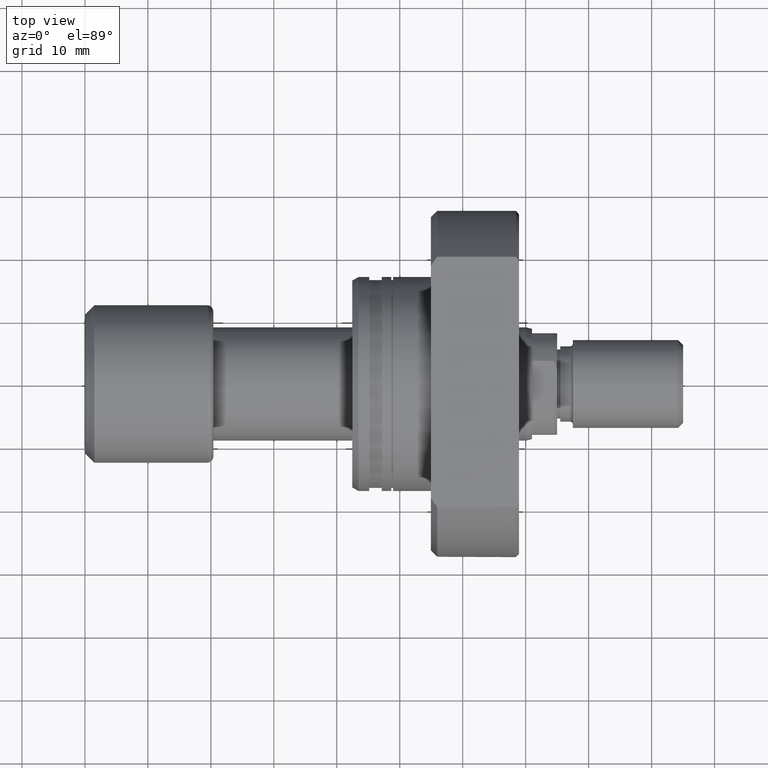
[diagram: clean part render]
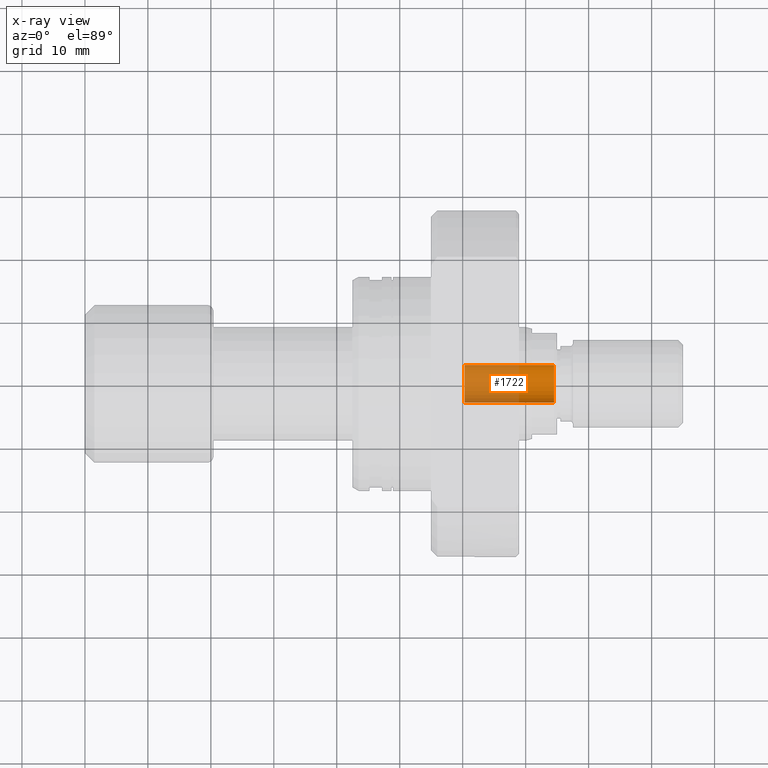
[diagram: x-ray — body ghosted, one internal face saturated and labeled with its STEP entity id]
A machine part, top view, then the same camera in x-ray: the body is ghosted and one INTERNAL B-rep face — a face not visible from any outside direction — is saturated and labeled: STEP entity #1722.
In plain terms, the highlighted cylindrical surface (edge-blend (fillet) strip) has radius 3 mm, axis along (1, -0, 0).
Its self-contained STEP definition (entity closure, byte-faithful):
#37 = CARTESIAN_POINT ( 'NONE',  ( 74.50000000000012790, -1.234662275621713888E-12, 0.000000000000000000 ) ) ;
#71 = ORIENTED_EDGE ( 'NONE', *, *, #1804, .T. ) ;
#110 = DIRECTION ( 'NONE',  ( 1.000000000000000000, -1.657264799492230625E-14, -0.000000000000000000 ) ) ;
#273 = VERTEX_POINT ( 'NONE', #3274 ) ;
#443 = CYLINDRICAL_SURFACE ( 'NONE', #1187, 3.000000000000363709 ) ;
#595 = CARTESIAN_POINT ( 'NONE',  ( 60.30000000000004690, 2.999999999999364508, 0.000000000000000000 ) ) ;
#745 = DIRECTION ( 'NONE',  ( 1.000000000000000000, -1.657264799492230625E-14, 0.000000000000000000 ) ) ;
#902 = DIRECTION ( 'NONE',  ( -1.850371707708369777E-14, -1.000000000000000000, 0.000000000000000000 ) ) ;
#969 = DIRECTION ( 'NONE',  ( 1.000000000000000000, -1.657264799492230625E-14, -0.000000000000000000 ) ) ;
#979 = EDGE_CURVE ( 'NONE', #2189, #1212, #2552, .T. ) ;
#1026 = EDGE_CURVE ( 'NONE', #1212, #273, #2675, .T. ) ;
#1071 = VECTOR ( 'NONE', #1398, 1000.000000000000000 ) ;
#1096 = CARTESIAN_POINT ( 'NONE',  ( 60.29999999999994742, -3.000000000001362910, 3.673940397442505574E-16 ) ) ;
#1187 = AXIS2_PLACEMENT_3D ( 'NONE', #3520, #969, #1269 ) ;
#1212 = VERTEX_POINT ( 'NONE', #2476 ) ;
#1269 = DIRECTION ( 'NONE',  ( 1.619075244244823791E-14, 1.000000000000000000, 0.000000000000000000 ) ) ;
#1301 = VECTOR ( 'NONE', #110, 1000.000000000000000 ) ;
#1333 = DIRECTION ( 'NONE',  ( 1.619075244244823791E-14, 1.000000000000000000, 0.000000000000000000 ) ) ;
#1398 = DIRECTION ( 'NONE',  ( 1.000000000000000000, -1.657264799492230625E-14, -0.000000000000000000 ) ) ;
#1431 = AXIS2_PLACEMENT_3D ( 'NONE', #37, #2326, #902 ) ;
#1722 = ADVANCED_FACE ( 'NONE', ( #2995 ), #443, .F. ) ;
#1804 = EDGE_CURVE ( 'NONE', #2189, #2763, #3641, .T. ) ;
#1983 = EDGE_CURVE ( 'NONE', #2763, #273, #3273, .T. ) ;
#2021 = EDGE_LOOP ( 'NONE', ( #3539, #71, #3035, #3193 ) ) ;
#2106 = CARTESIAN_POINT ( 'NONE',  ( 60.29999999999994742, -3.000000000001362910, 3.673940397442505574E-16 ) ) ;
#2189 = VERTEX_POINT ( 'NONE', #2106 ) ;
#2326 = DIRECTION ( 'NONE',  ( 1.000000000000000000, -1.657264799492254606E-14, 0.000000000000000000 ) ) ;
#2476 = CARTESIAN_POINT ( 'NONE',  ( 60.30000000000004690, 2.999999999999364508, 0.000000000000000000 ) ) ;
#2552 = CIRCLE ( 'NONE', #3561, 3.000000000000363709 ) ;
#2675 = LINE ( 'NONE', #595, #1301 ) ;
#2763 = VERTEX_POINT ( 'NONE', #2884 ) ;
#2884 = CARTESIAN_POINT ( 'NONE',  ( 74.50000000000007105, -3.000000000001598721, 3.673940397442650035E-16 ) ) ;
#2995 = FACE_OUTER_BOUND ( 'NONE', #2021, .T. ) ;
#3035 = ORIENTED_EDGE ( 'NONE', *, *, #1983, .T. ) ;
#3193 = ORIENTED_EDGE ( 'NONE', *, *, #1026, .F. ) ;
#3273 = CIRCLE ( 'NONE', #1431, 3.000000000000363709 ) ;
#3274 = CARTESIAN_POINT ( 'NONE',  ( 74.50000000000017053, 2.999999999999129141, 0.000000000000000000 ) ) ;
#3306 = CARTESIAN_POINT ( 'NONE',  ( 60.29999999999999716, -9.993306740938150862E-13, 0.000000000000000000 ) ) ;
#3520 = CARTESIAN_POINT ( 'NONE',  ( 60.29999999999999716, -9.993306740938150862E-13, 0.000000000000000000 ) ) ;
#3539 = ORIENTED_EDGE ( 'NONE', *, *, #979, .F. ) ;
#3561 = AXIS2_PLACEMENT_3D ( 'NONE', #3306, #745, #1333 ) ;
#3641 = LINE ( 'NONE', #1096, #1071 ) ;